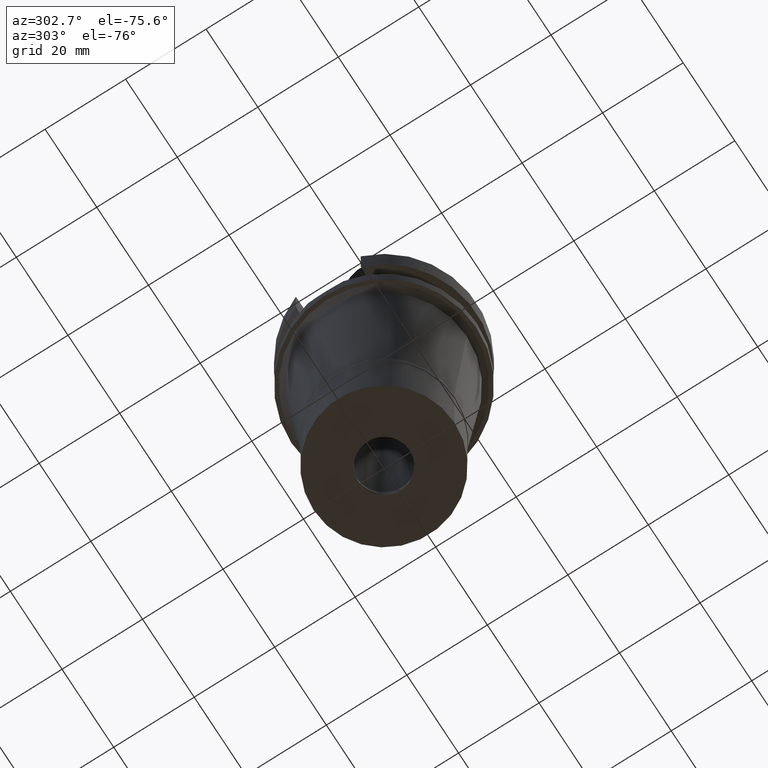
[diagram: clean part render]
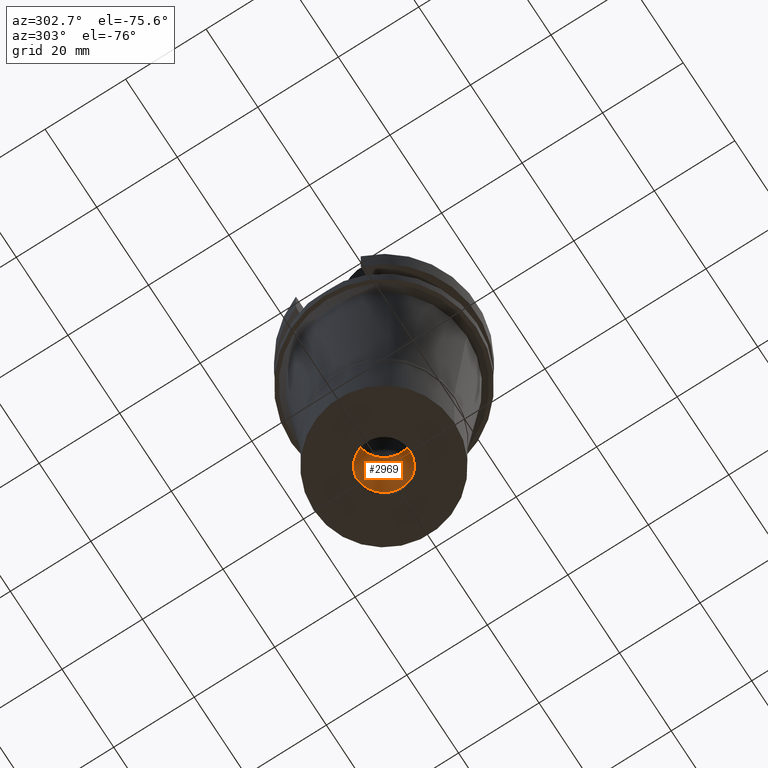
[diagram: same view with one face highlighted and labeled with its STEP entity id]
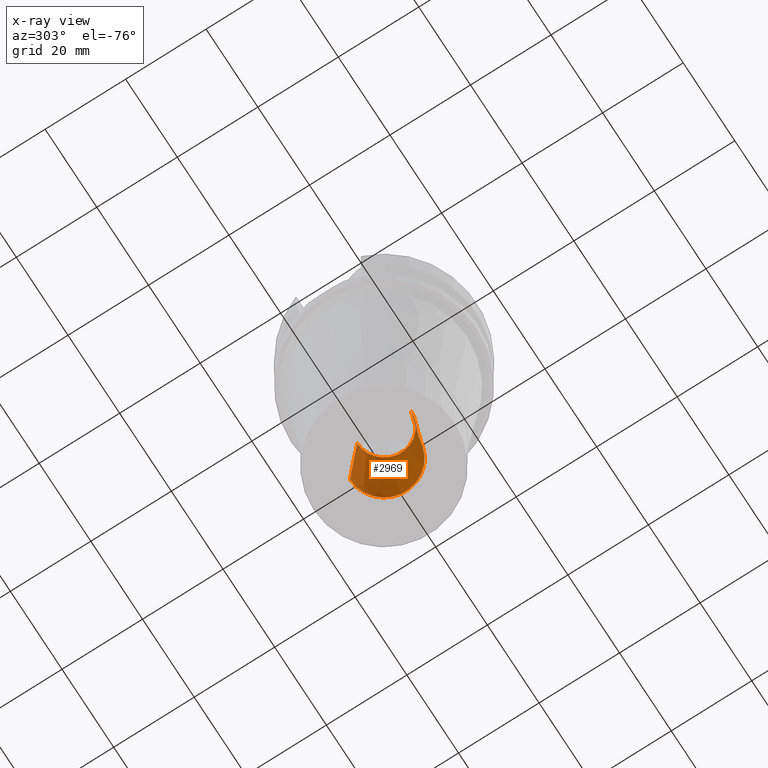
[diagram: x-ray of the same camera — body ghosted, the highlighted face saturated]
A machine part, auxiliary view. The second image highlights one B-rep face of the part: STEP entity #2969.
The next image is the same camera in x-ray: the body ghosted, the highlighted face saturated — about 9% of this face is hidden behind the body in this view.
In plain terms, the highlighted conical surface has half-angle 4 deg.
Its self-contained STEP definition (entity closure, byte-faithful):
#27 = EDGE_CURVE ( 'NONE', #1098, #879, #1803, .T. ) ;
#60 = CIRCLE ( 'NONE', #315, 8.500000000000000000 ) ;
#112 = DIRECTION ( 'NONE',  ( 0.0000000000000000000, 1.000000000000000000, 0.0000000000000000000 ) ) ;
#247 = FACE_OUTER_BOUND ( 'NONE', #1961, .T. ) ;
#297 = DIRECTION ( 'NONE',  ( 0.0000000000000000000, 0.0000000000000000000, -1.000000000000000000 ) ) ;
#313 = CARTESIAN_POINT ( 'NONE',  ( 0.0000000000000000000, -6.649999999999999467, -56.84376742508000291 ) ) ;
#315 = AXIS2_PLACEMENT_3D ( 'NONE', #2875, #297, #1229 ) ;
#471 = VECTOR ( 'NONE', #1531, 1000.000000000000000 ) ;
#477 = CARTESIAN_POINT ( 'NONE',  ( 0.0000000000000000000, 0.0000000000000000000, -70.07188371254000003 ) ) ;
#520 = CIRCLE ( 'NONE', #3035, 6.649999999999999467 ) ;
#668 = DIRECTION ( 'NONE',  ( 0.0000000000000000000, -1.000000000000000000, 0.0000000000000000000 ) ) ;
#841 = LINE ( 'NONE', #1780, #471 ) ;
#879 = VERTEX_POINT ( 'NONE', #1187 ) ;
#1041 = VERTEX_POINT ( 'NONE', #2919 ) ;
#1093 = CARTESIAN_POINT ( 'NONE',  ( 0.0000000000000000000, 8.500000000000000000, -83.29999999999999716 ) ) ;
#1098 = VERTEX_POINT ( 'NONE', #1547 ) ;
#1187 = CARTESIAN_POINT ( 'NONE',  ( 0.0000000000000000000, 6.649999999999999467, -56.84376742508000291 ) ) ;
#1202 = CONICAL_SURFACE ( 'NONE', #1503, 7.575000000000000178, 0.06981317007975955391 ) ;
#1229 = DIRECTION ( 'NONE',  ( 0.0000000000000000000, 1.000000000000000000, 0.0000000000000000000 ) ) ;
#1421 = DIRECTION ( 'NONE',  ( 0.0000000000000000000, 0.0000000000000000000, -1.000000000000000000 ) ) ;
#1503 = AXIS2_PLACEMENT_3D ( 'NONE', #477, #1421, #668 ) ;
#1531 = DIRECTION ( 'NONE',  ( 0.0000000000000000000, 0.06975647374412173585, 0.9975640502598245307 ) ) ;
#1547 = CARTESIAN_POINT ( 'NONE',  ( 0.0000000000000000000, 8.500000000000000000, -83.29999999999999716 ) ) ;
#1719 = CARTESIAN_POINT ( 'NONE',  ( 0.0000000000000000000, 0.0000000000000000000, -56.84376742508000291 ) ) ;
#1756 = VECTOR ( 'NONE', #2035, 1000.000000000000000 ) ;
#1780 = CARTESIAN_POINT ( 'NONE',  ( 0.0000000000000000000, -8.500000000000000000, -83.29999999999999716 ) ) ;
#1803 = LINE ( 'NONE', #1093, #1756 ) ;
#1961 = EDGE_LOOP ( 'NONE', ( #2726, #2752, #2176, #2832 ) ) ;
#2035 = DIRECTION ( 'NONE',  ( 0.0000000000000000000, -0.06975647374412173585, 0.9975640502598245307 ) ) ;
#2176 = ORIENTED_EDGE ( 'NONE', *, *, #2298, .F. ) ;
#2186 = EDGE_CURVE ( 'NONE', #1098, #1041, #60, .T. ) ;
#2298 = EDGE_CURVE ( 'NONE', #879, #3020, #520, .T. ) ;
#2358 = EDGE_CURVE ( 'NONE', #1041, #3020, #841, .T. ) ;
#2726 = ORIENTED_EDGE ( 'NONE', *, *, #2186, .T. ) ;
#2752 = ORIENTED_EDGE ( 'NONE', *, *, #2358, .T. ) ;
#2832 = ORIENTED_EDGE ( 'NONE', *, *, #27, .F. ) ;
#2875 = CARTESIAN_POINT ( 'NONE',  ( 0.0000000000000000000, 0.0000000000000000000, -83.29999999999999716 ) ) ;
#2919 = CARTESIAN_POINT ( 'NONE',  ( 0.0000000000000000000, -8.500000000000000000, -83.29999999999999716 ) ) ;
#2943 = DIRECTION ( 'NONE',  ( 0.0000000000000000000, 0.0000000000000000000, -1.000000000000000000 ) ) ;
#2969 = ADVANCED_FACE ( 'NONE', ( #247 ), #1202, .F. ) ;
#3020 = VERTEX_POINT ( 'NONE', #313 ) ;
#3035 = AXIS2_PLACEMENT_3D ( 'NONE', #1719, #2943, #112 ) ;